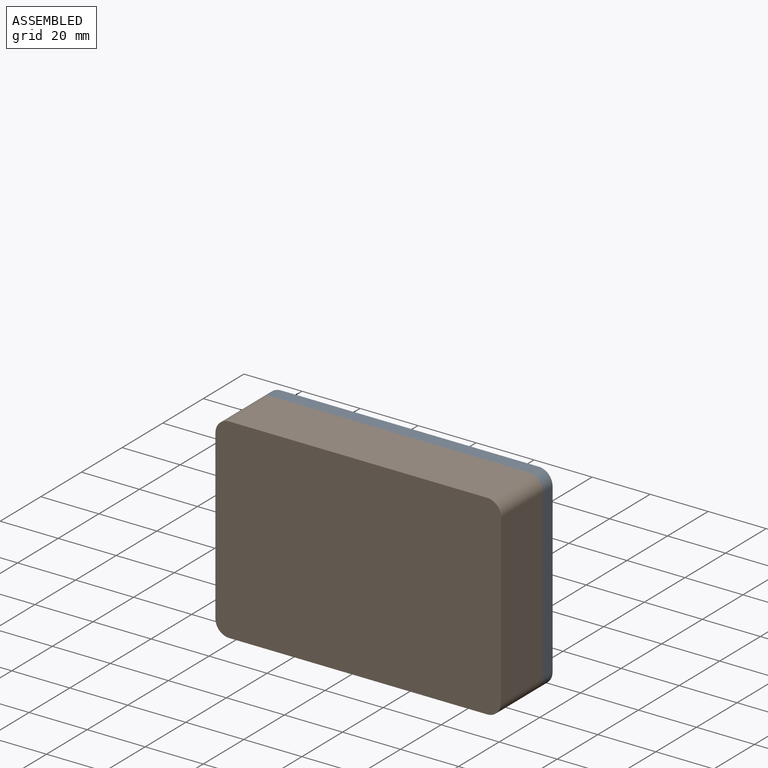
[diagram: assembled view]
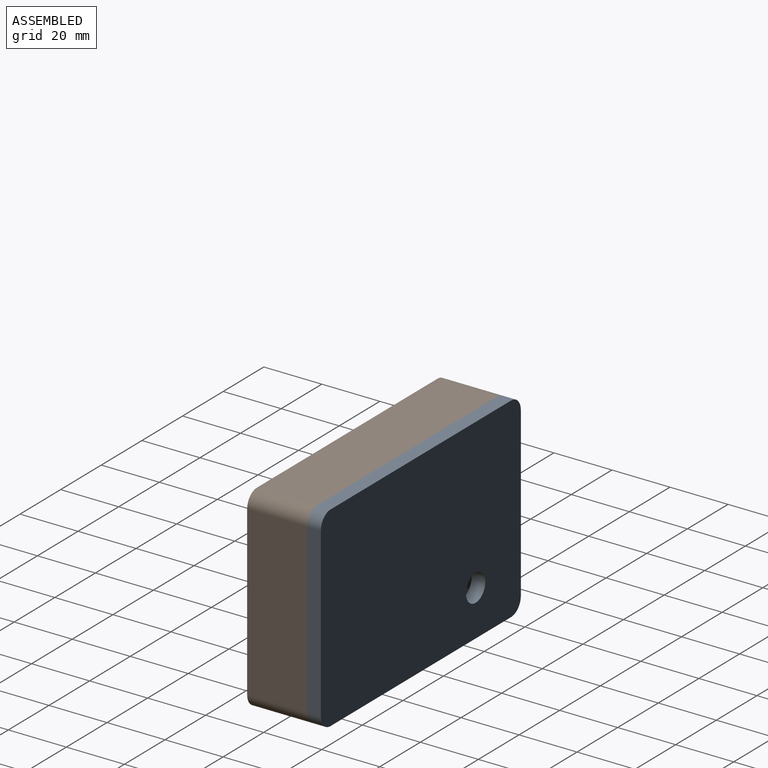
[diagram: assembled view, second angle]
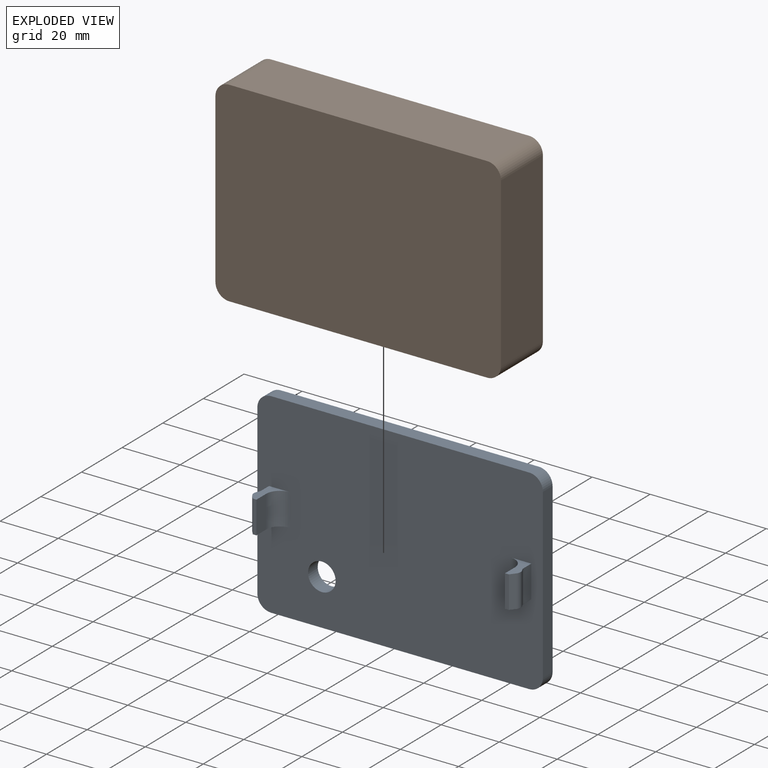
[diagram: exploded view]
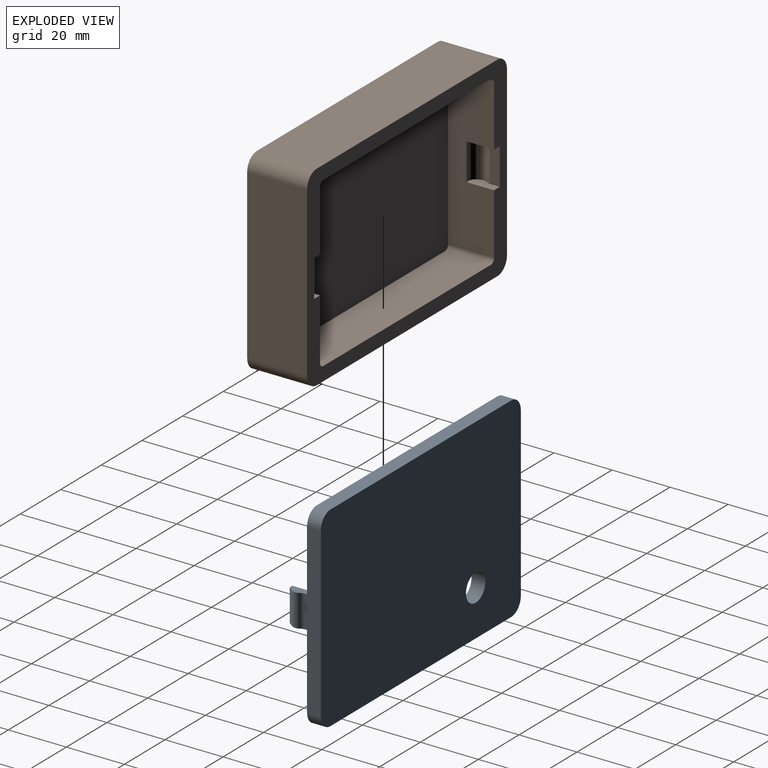
[diagram: exploded view, second angle]
ASSEMBLY  parts=2 mates=3
PART A: 29 faces, bbox 98.4x14.3x67.5 mm
  f0: cylinder r=4.76mm len=4.76mm, axis (0,1,0), area 35.6mm2, adj f1,f7,f8,f9
  f1: plane 88.9x4.76mm, normal (0,0,-1), area 423.4mm2, adj f0,f2,f8,f9
  f2: cylinder r=4.76mm len=4.76mm, axis (0,1,0), area 35.6mm2, adj f1,f3,f8,f9
  f3: plane 57.94x4.76mm, normal (1,0,0), area 276mm2, adj f2,f4,f8,f9
  f4: cylinder r=4.76mm len=4.76mm, axis (0,1,0), area 35.6mm2, adj f3,f5,f8,f9
  f5: plane 88.9x4.76mm, normal (0,0,1), area 423.4mm2, adj f4,f6,f8,f9
  f6: cylinder r=4.76mm len=4.76mm, axis (0,1,0), area 35.6mm2, adj f5,f7,f8,f9
  f7: plane 57.94x4.76mm, normal (-1,0,0), area 276mm2, adj f0,f6,f8,f9
  f8: plane 98.43x67.47mm, normal (0,-1,0), area 6392.1mm2, adj f0,f1,f2,f3,f4,f5,f6,f7
  f9: plane 98.43x67.47mm, normal (0,1,0), area 6549.9mm2, adj f0,f1,f2,f3,f4,f5,f6,f7
  f10: plane 11.11x4.76mm, normal (1,0,0), area 52.9mm2, adj f15,f16,f17,f18
  f11: plane 11.11x3.72mm, normal (-1,0,0), area 41.3mm2, adj f8,f12,f16,f17
  f12: cylinder r=2.38mm len=11.11mm, axis (0,0,-1), area 15.5mm2, adj f11,f13,f16,f17
  f13: cylinder r=2.38mm len=11.11mm, axis (0,0,-1), area 33.2mm2, adj f12,f14,f16,f17
  f14: plane 11.11x1.7mm, normal (-0.78,-0.62,0), area 24mm2, adj f13,f15,f16,f17
  f15: plane 11.11x1.27mm, normal (0,-1,0), area 14.1mm2, adj f10,f14,f16,f17
  f16: plane 9.53x7.89mm, normal (0,0,1), area 28.4mm2, adj f8,f10,f11,f12,f13,f14,f15,f18
  f17: plane 9.53x7.89mm, normal (0,0,-1), area 28.4mm2, adj f8,f10,f11,f12,f13,f14,f15,f18
  f18: cylinder r=4.76mm len=11.11mm, axis (0,0,1), area 83.1mm2, adj f8,f10,f16,f17
  f19: plane 11.11x4.76mm, normal (-1,0,0), area 52.9mm2, adj f20,f25,f26,f27
  f20: plane 11.11x1.27mm, normal (0,-1,0), area 14.1mm2, adj f19,f21,f25,f26
  f21: plane 11.11x1.7mm, normal (0.78,-0.62,0), area 24mm2, adj f20,f22,f25,f26
  f22: cylinder r=2.38mm len=11.11mm, axis (0,0,-1), area 33.2mm2, adj f21,f23,f25,f26
  f23: cylinder r=2.38mm len=11.11mm, axis (0,0,-1), area 15.5mm2, adj f22,f24,f25,f26
  f24: plane 11.11x3.72mm, normal (1,0,0), area 41.3mm2, adj f8,f23,f25,f26
  f25: plane 9.53x7.89mm, normal (0,0,1), area 28.4mm2, adj f8,f19,f20,f21,f22,f23,f24,f27
  f26: plane 9.53x7.89mm, normal (0,0,-1), area 28.4mm2, adj f8,f19,f20,f21,f22,f23,f24,f27
  f27: cylinder r=4.76mm len=11.11mm, axis (0,0,-1), area 83.1mm2, adj f8,f19,f25,f26
  f28: cylinder r=4.76mm len=9.53mm, axis (0,-1,0), area 142.5mm2, adj f8,f9
PART B: 37 faces, bbox 98.4x20.6x67.5 mm
  f0: plane 54.77x15.88mm, normal (-1,0,0), area 748.5mm2, adj f1,f10,f11,f17,f28,f35,f36
  f1: plane 98.43x67.47mm, normal (0,1,0), area 1585.1mm2, adj f0,f2,f3,f4,f5,f6,f7,f8
  f2: plane 54.77x15.88mm, normal (1,0,0), area 748.5mm2, adj f1,f13,f14,f17,f25,f26,f27
  f3: plane 88.9x20.64mm, normal (0,0,1), area 1834.7mm2, adj f1,f4,f16,f18
  f4: cylinder r=4.76mm len=20.64mm, axis (0,1,0), area 154.4mm2, adj f1,f3,f5,f18
  f5: plane 57.94x20.64mm, normal (-1,0,0), area 1195.8mm2, adj f1,f4,f6,f18
  f6: cylinder r=4.76mm len=20.64mm, axis (0,1,0), area 154.4mm2, adj f1,f5,f7,f18
  f7: plane 88.9x20.64mm, normal (0,0,-1), area 1834.7mm2, adj f1,f6,f8,f18
  f8: cylinder r=4.76mm len=20.64mm, axis (0,1,0), area 154.4mm2, adj f1,f7,f9,f18
  f9: plane 57.94x20.64mm, normal (1,0,0), area 1195.8mm2, adj f1,f8,f16,f18
  f10: cylinder r=1.59mm len=15.88mm, axis (0,1,0), area 39.6mm2, adj f0,f1,f15,f17
  f11: cylinder r=1.59mm len=15.88mm, axis (0,1,0), area 39.6mm2, adj f0,f1,f12,f17
  f12: plane 82.55x15.88mm, normal (0,0,1), area 1310.5mm2, adj f1,f11,f13,f17
  f13: cylinder r=1.59mm len=15.88mm, axis (0,1,0), area 39.6mm2, adj f1,f2,f12,f17
  f14: cylinder r=1.59mm len=15.88mm, axis (0,1,0), area 39.6mm2, adj f1,f2,f15,f17
  f15: plane 82.55x15.88mm, normal (0,0,-1), area 1310.5mm2, adj f1,f10,f14,f17
  f16: cylinder r=4.76mm len=20.64mm, axis (0,1,0), area 154.4mm2, adj f1,f3,f9,f18
  f17: plane 85.73x57.94mm, normal (0,1,0), area 4965.1mm2, adj f0,f2,f10,f11,f12,f13,f14,f15
  f18: plane 98.43x67.47mm, normal (0,-1,0), area 6621.1mm2, adj f3,f4,f5,f6,f7,f8,f9,f16
  f19: plane 12.7x3.12mm, normal (1,0,0), area 39.6mm2, adj f1,f20,f26,f27
  f20: cylinder r=2.38mm len=12.7mm, axis (0,0,-1), area 13.2mm2, adj f19,f21,f26,f27
  f21: plane 12.7x1.22mm, normal (0.91,-0.42,0), area 17.1mm2, adj f20,f22,f26,f27
  f22: cylinder r=2.38mm len=12.7mm, axis (0,0,-1), area 26.4mm2, adj f21,f23,f26,f27
  f23: plane 12.7x0.79mm, normal (0.91,0.42,0), area 11.1mm2, adj f22,f24,f26,f27
  f24: cylinder r=2.38mm len=12.7mm, axis (0,0,-1), area 34.3mm2, adj f23,f25,f26,f27
  f25: plane 12.7x1.06mm, normal (0,1,0), area 13.4mm2, adj f2,f24,f26,f27
  f26: plane 9.53x3.81mm, normal (0,0,-1), area 29.4mm2, adj f1,f2,f19,f20,f21,f22,f23,f24
  f27: plane 9.53x3.81mm, normal (0,0,1), area 29.4mm2, adj f1,f2,f19,f20,f21,f22,f23,f24
  f28: plane 12.7x1.06mm, normal (0,1,0), area 13.4mm2, adj f0,f29,f35,f36
  f29: cylinder r=2.38mm len=12.7mm, axis (0,0,-1), area 34.3mm2, adj f28,f30,f35,f36
  f30: plane 12.7x0.79mm, normal (-0.91,0.42,0), area 11.1mm2, adj f29,f31,f35,f36
  f31: cylinder r=2.38mm len=12.7mm, axis (0,0,-1), area 26.4mm2, adj f30,f32,f35,f36
  f32: plane 12.7x1.22mm, normal (-0.91,-0.42,0), area 17.1mm2, adj f31,f33,f35,f36
  f33: cylinder r=2.38mm len=12.7mm, axis (0,0,-1), area 13.2mm2, adj f32,f34,f35,f36
  f34: plane 12.7x3.12mm, normal (-1,0,0), area 39.6mm2, adj f1,f33,f35,f36
  f35: plane 9.53x3.81mm, normal (0,0,-1), area 29.4mm2, adj f0,f1,f28,f29,f30,f31,f32,f33
  f36: plane 9.53x3.81mm, normal (0,0,1), area 29.4mm2, adj f0,f1,f28,f29,f30,f31,f32,f33
PLACE A t=(-15.52,12.93,3.27)mm
PLACE B t=(-15.52,2.61,3.27)mm fixed
MATE planar A.f5 <-> B.f3  axis (0,0,1) through (-15.52,12.93,37.01)mm
MATE planar A.f7 <-> B.f5  axis (-1,0,0) through (-64.73,12.93,3.27)mm
MATE planar B.f1 <-> A.f8  axis (0,1,0) through (-15.52,10.55,3.27)mm
